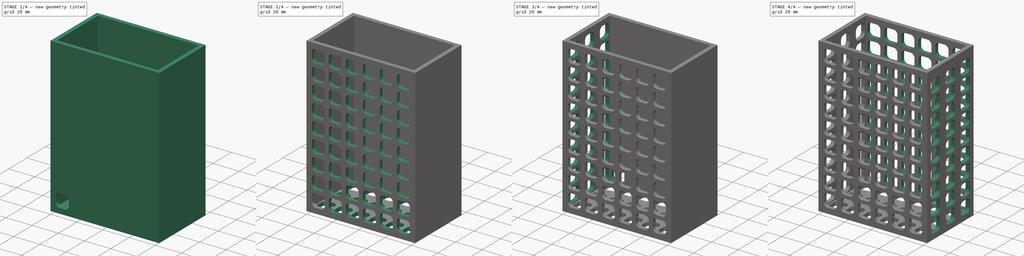
[diagram: build sequence overview — one tinted view per stage of 4, left to right]
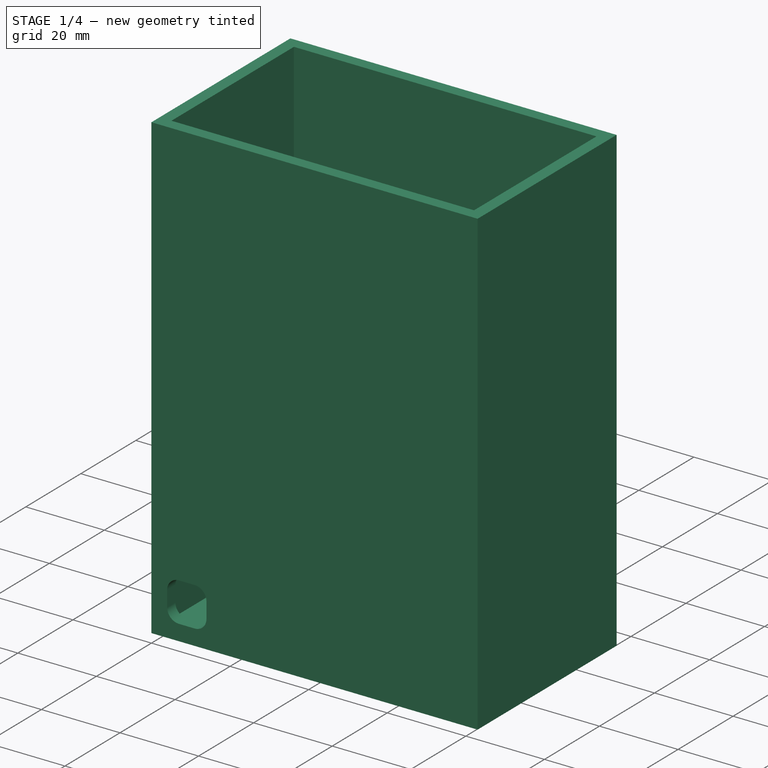
[diagram: stage 1 of 4 — iso view after this stage's code; geometry added in this stage tinted green]
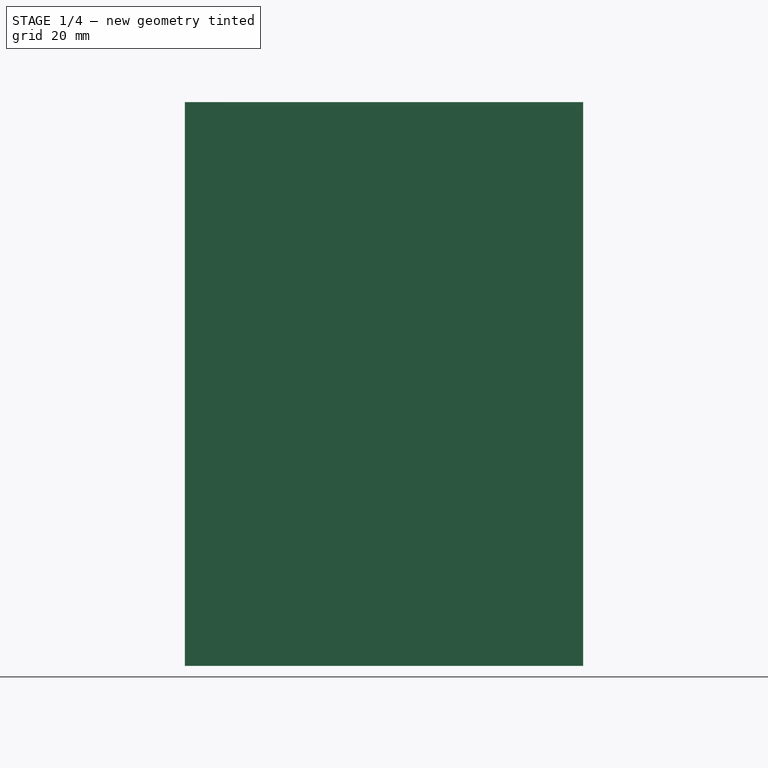
[diagram: stage 1 of 4 — front view after this stage's code; geometry added in this stage tinted green]
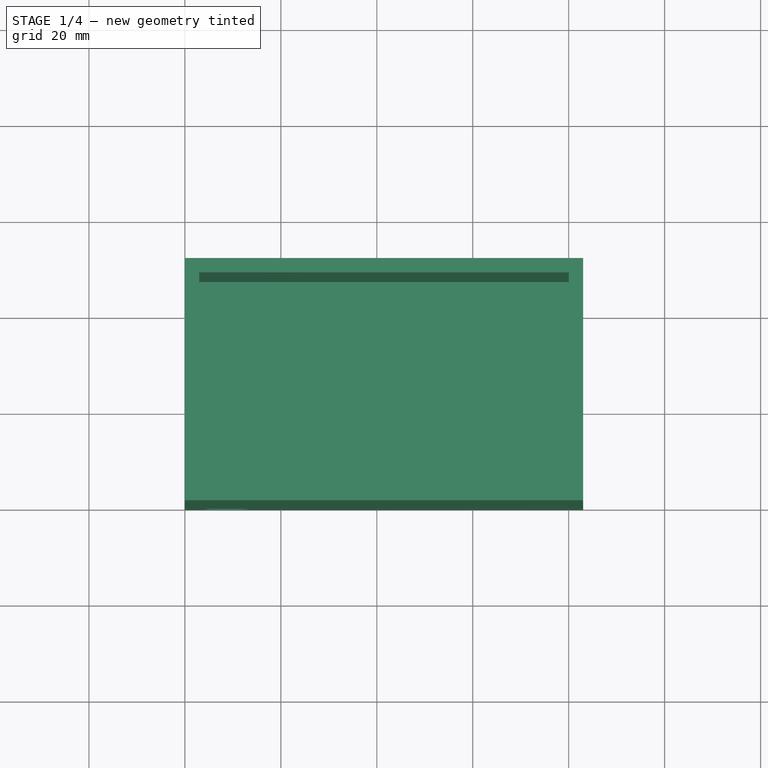
[diagram: stage 1 of 4 — top view after this stage's code; geometry added in this stage tinted green]
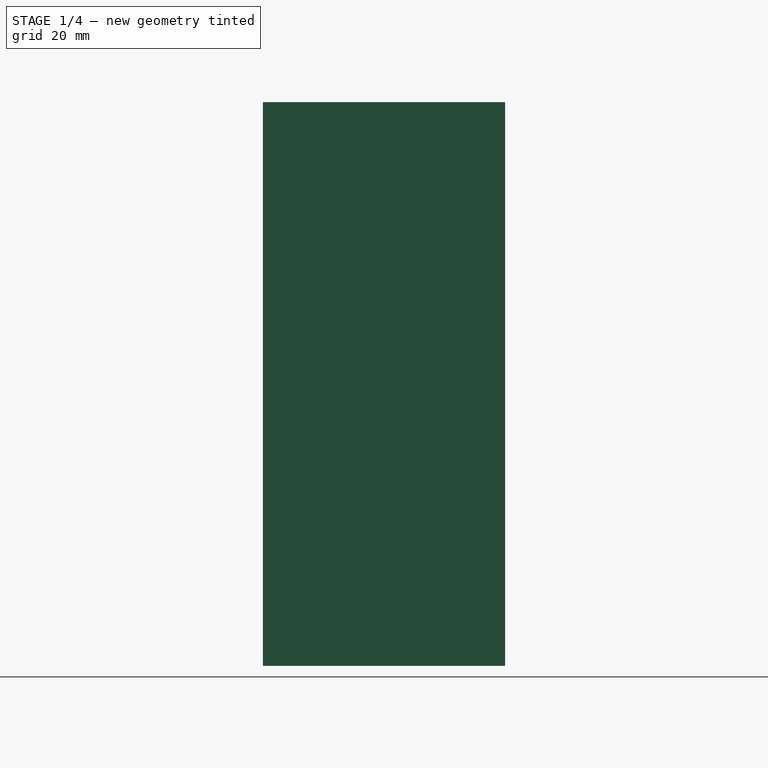
[diagram: stage 1 of 4 — right view after this stage's code; geometry added in this stage tinted green]
FCSTD DOCUMENT  (FreeCAD 0.19R24276 (Git))
Label: cestoLavaLouca
License: All rights reserved
LicenseURL: http://en.wikipedia.org/wiki/All_rights_reserved
objects: PartDesign::LinearPattern×10, Sketcher::SketchObject×7, PartDesign::Pocket×6, PartDesign::MultiTransform×5, PartDesign::Pad×1, PartDesign::Body×1
note: 37 computed .brp shape members not serialized (recipe doc carries the construction recipe); baked Part::Feature solids carry a one-line shape summary decoded from their .brp

FEATURE [Sketcher::SketchObject] Sketch
  FullyConstrained = true
  MapMode = 5
  Support = -> [XY_Plane]
  sketch-geometry (4):
    g0: LineSegment StartX=0 StartY=0 StartZ=0 EndX=83 EndY=0 EndZ=0
    g1: LineSegment StartX=83 StartY=0 StartZ=0 EndX=83 EndY=50.5 EndZ=0
    g2: LineSegment StartX=83 StartY=50.5 StartZ=0 EndX=0 EndY=50.5 EndZ=0
    g3: LineSegment StartX=0 StartY=50.5 StartZ=0 EndX=0 EndY=0 EndZ=0
  constraints (11):
    c: Coincident(g0,g1)
    c: Coincident(g1,g2)
    c: Coincident(g2,g3)
    c: Coincident(g3,g0)
    c: Horizontal(g0)
    c: Horizontal(g2)
    c: Vertical(g1)
    c: Vertical(g3)
    c: Coincident(g0,g-1)
    c: DistanceX(g2,g2) = 83
    c: DistanceY(g3,g3) = 50.5
FEATURE [PartDesign::Pad] Pad
  Direction = (1,1,1)
  Length = 117.5
  Length2 = 100
  Profile = -> Sketch
  Type = 0
FEATURE [Sketcher::SketchObject] Sketch001
  FullyConstrained = true
  MapMode = 5
  Placement = pos=(0,0,117.5) rot=(0,0,1;0rad)
  Support = -> [Pad]
  sketch-geometry (4):
    g0: LineSegment StartX=3 StartY=47.5 StartZ=0 EndX=80 EndY=47.5 EndZ=0
    g1: LineSegment StartX=80 StartY=47.5 StartZ=0 EndX=80 EndY=3 EndZ=0
    g2: LineSegment StartX=80 StartY=3 StartZ=0 EndX=3 EndY=3 EndZ=0
    g3: LineSegment StartX=3 StartY=3 StartZ=0 EndX=3 EndY=47.5 EndZ=0
  constraints (12):
    c: Coincident(g0,g1)
    c: Coincident(g1,g2)
    c: Coincident(g2,g3)
    c: Coincident(g3,g0)
    c: Horizontal(g0)
    c: Horizontal(g2)
    c: Vertical(g1)
    c: Vertical(g3)
    c: DistanceX(g2) = 3
    c: DistanceY(g2) = 3
    c: DistanceY(g3,g3) = 44.5
    c: DistanceX(g0,g0) = 77
FEATURE [PartDesign::Pocket] Pocket
  BaseFeature = -> Pad
  Length = 114.5
  Length2 = 100
  Profile = -> Sketch001
  Type = 0
  expr: Length = 117.5 - 3
FEATURE [Sketcher::SketchObject] Sketch002
  FullyConstrained = true
  MapMode = 5
  Placement = pos=(0,0,0) rot=(1,0,0;1.5708rad)
  Support = -> [Pocket]
  sketch-geometry (8):
    g0: LineSegment StartX=7 StartY=14 StartZ=0 EndX=11 EndY=14 EndZ=0
    g1: LineSegment StartX=14 StartY=11 StartZ=0 EndX=14 EndY=7 EndZ=0
    g2: LineSegment StartX=11 StartY=4 StartZ=0 EndX=7 EndY=4 EndZ=0
    g3: LineSegment StartX=4 StartY=7 StartZ=0 EndX=4 EndY=11 EndZ=0
    g4: ArcOfCircle CenterX=11 CenterY=11 CenterZ=0 NormalX=0 NormalY=0 NormalZ=1 AngleXU=0 Radius=3 StartAngle=0 EndAngle=1.5708
    g5: ArcOfCircle CenterX=11 CenterY=7 CenterZ=0 NormalX=0 NormalY=0 NormalZ=1 AngleXU=0 Radius=3 StartAngle=4.71239 EndAngle=6.28319
    g6: ArcOfCircle CenterX=7 CenterY=7 CenterZ=0 NormalX=0 NormalY=0 NormalZ=1 AngleXU=0 Radius=3 StartAngle=3.14159 EndAngle=4.71239
    g7: ArcOfCircle CenterX=7 CenterY=11 CenterZ=0 NormalX=0 NormalY=0 NormalZ=1 AngleXU=0 Radius=3 StartAngle=1.5708 EndAngle=3.14159
  constraints (20):
    c: Horizontal(g0)
    c: Horizontal(g2)
    c: Vertical(g1)
    c: Vertical(g3)
    c: Tangent(g0,g4) = 1.5708
    c: Tangent(g1,g4) = 1.5708
    c: Tangent(g2,g5) = 1.5708
    c: Tangent(g1,g5) = 1.5708
    c: Tangent(g2,g6) = 1.5708
    c: Tangent(g3,g6) = 1.5708
    c: Tangent(g3,g7) = 1.5708
    c: Tangent(g0,g7) = 1.5708
    c: Radius(g7) = 3
    c: Equal(g7,g4)
    c: Equal(g4,g5)
    c: Equal(g5,g6)
    c: Distance(g2,g-1) = 4
    c: Distance(g3,g-2) = 4
    c: Distance(g1,g3) = 10
    c: Distance(g0,g2) = 10
FEATURE [PartDesign::Pocket] Pocket001
  BaseFeature = -> Pocket
  Length = 3
  Length2 = 100
  Profile = -> Sketch002
  Type = 0
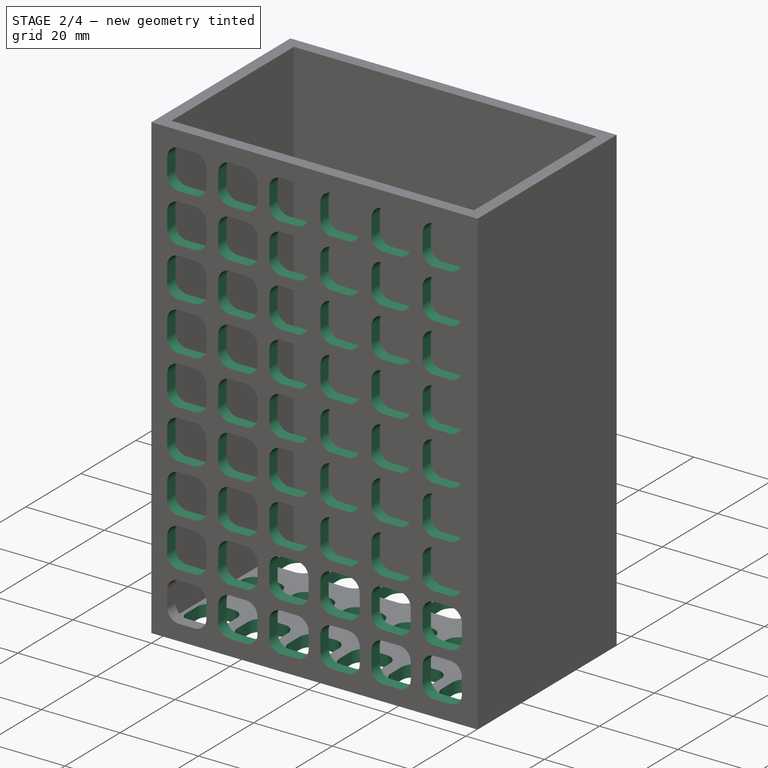
[diagram: stage 2 of 4 — iso view after this stage's code; geometry added in this stage tinted green]
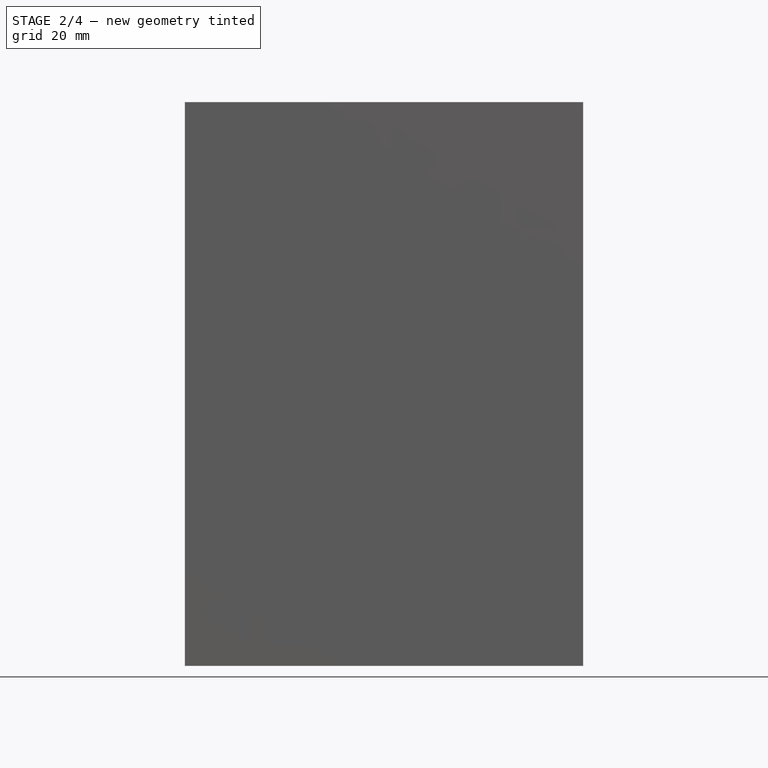
[diagram: stage 2 of 4 — front view after this stage's code; geometry added in this stage tinted green]
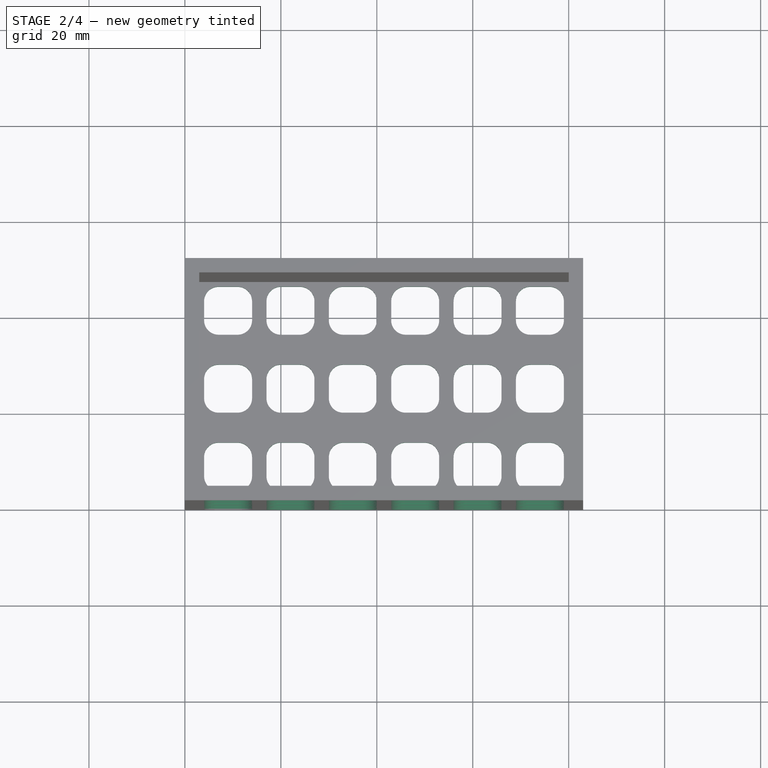
[diagram: stage 2 of 4 — top view after this stage's code; geometry added in this stage tinted green]
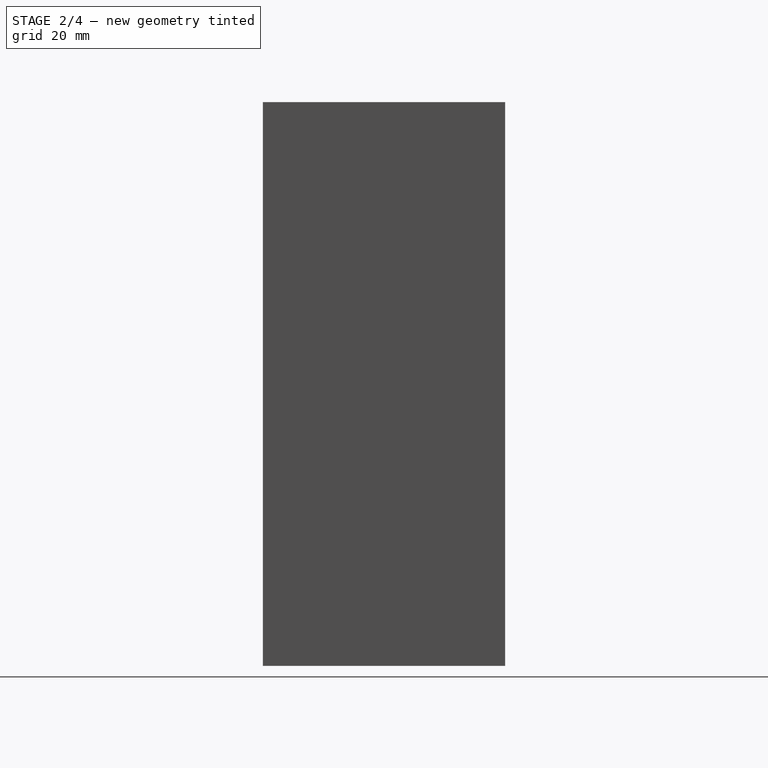
[diagram: stage 2 of 4 — right view after this stage's code; geometry added in this stage tinted green]
FEATURE [PartDesign::LinearPattern] LinearPattern
  Direction = -> Sketch002 [H_Axis]
  Length = 65
  Occurrences = 6
  expr: Length = 83 - 4 - 10 - 4
FEATURE [PartDesign::LinearPattern] LinearPattern001
  Direction = -> Sketch002 [V_Axis]
  Length = 99.5
  Occurrences = 9
  expr: Length = 117.5 - 4 - 10 - 4
FEATURE [PartDesign::MultiTransform] MultiTransform
  BaseFeature = -> Pocket001
  Originals = -> [Pocket001]
  Transformations = -> [LinearPattern,LinearPattern001]
FEATURE [Sketcher::SketchObject] Sketch003
  FullyConstrained = true
  MapMode = 5
  Placement = pos=(0,0,0) rot=(1,0,0;3.14159rad)
  Support = -> [MultiTransform]
  sketch-geometry (8):
    g0: LineSegment StartX=7 StartY=-4 StartZ=0 EndX=11 EndY=-4 EndZ=0
    g1: LineSegment StartX=14 StartY=-7 StartZ=0 EndX=14 EndY=-11 EndZ=0
    g2: LineSegment StartX=11 StartY=-14 StartZ=0 EndX=7 EndY=-14 EndZ=0
    g3: LineSegment StartX=4 StartY=-11 StartZ=0 EndX=4 EndY=-7 EndZ=0
    g4: ArcOfCircle CenterX=7 CenterY=-7 CenterZ=0 NormalX=0 NormalY=0 NormalZ=1 AngleXU=0 Radius=3 StartAngle=1.5708 EndAngle=3.14159
    g5: ArcOfCircle CenterX=11 CenterY=-7 CenterZ=0 NormalX=0 NormalY=0 NormalZ=1 AngleXU=0 Radius=3 StartAngle=0 EndAngle=1.5708
    g6: ArcOfCircle CenterX=11 CenterY=-11 CenterZ=0 NormalX=0 NormalY=0 NormalZ=1 AngleXU=0 Radius=3 StartAngle=4.71239 EndAngle=6.28319
    g7: ArcOfCircle CenterX=7 CenterY=-11 CenterZ=0 NormalX=0 NormalY=0 NormalZ=1 AngleXU=0 Radius=3 StartAngle=3.14159 EndAngle=4.71239
  constraints (20):
    c: Horizontal(g0)
    c: Horizontal(g2)
    c: Vertical(g1)
    c: Vertical(g3)
    c: Tangent(g3,g4) = 1.5708
    c: Tangent(g0,g4) = 1.5708
    c: Tangent(g0,g5) = 1.5708
    c: Tangent(g1,g5) = 1.5708
    c: Tangent(g1,g6) = 1.5708
    c: Tangent(g2,g6) = 1.5708
    c: Tangent(g2,g7) = 1.5708
    c: Tangent(g3,g7) = 1.5708
    c: Radius(g4) = 3
    c: Equal(g4,g5)
    c: Equal(g5,g7)
    c: Equal(g7,g6)
    c: DistanceY(g2,g0) = 10
    c: DistanceX(g3,g1) = 10
    c: DistanceY(g0,g-1) = 4
    c: DistanceX(g-1,g3) = 4
FEATURE [PartDesign::Pocket] Pocket002
  BaseFeature = -> MultiTransform
  Length = 3
  Length2 = 100
  Profile = -> Sketch003
  Type = 0
FEATURE [PartDesign::LinearPattern] LinearPattern003
  Direction = -> Sketch003 [H_Axis]
  Length = 65
  Occurrences = 6
  expr: Length = 83 - 4 - 4 - 10
FEATURE [PartDesign::LinearPattern] LinearPattern004
  Direction = -> Sketch003 [V_Axis]
  Length = 32.5
  Occurrences = 3
  Reversed = true
  expr: Length = 50.5 - 4 - 10 - 4
FEATURE [PartDesign::MultiTransform] MultiTransform001
  BaseFeature = -> Pocket002
  Originals = -> [Pocket002]
  Transformations = -> [LinearPattern003,LinearPattern004]
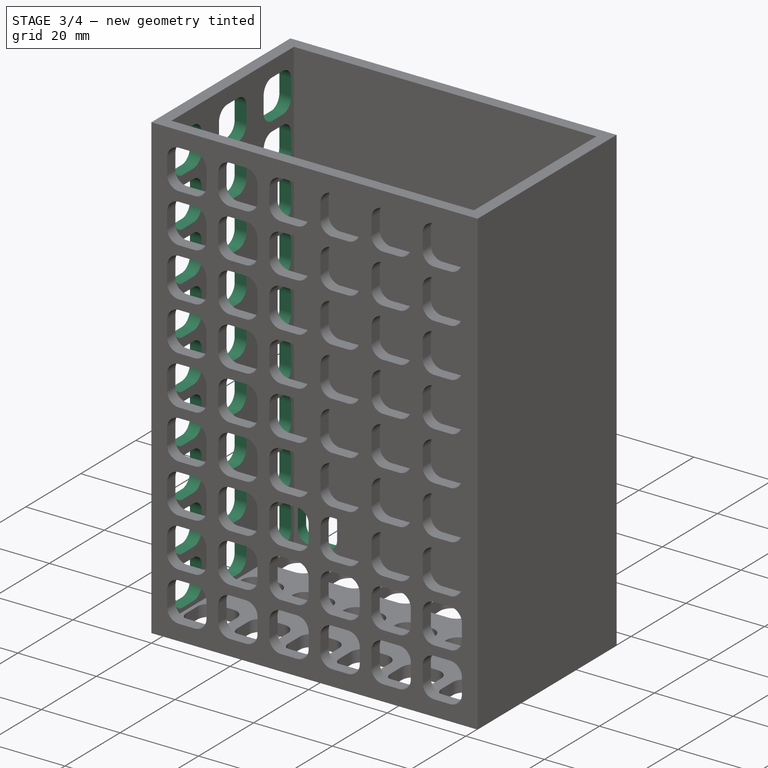
[diagram: stage 3 of 4 — iso view after this stage's code; geometry added in this stage tinted green]
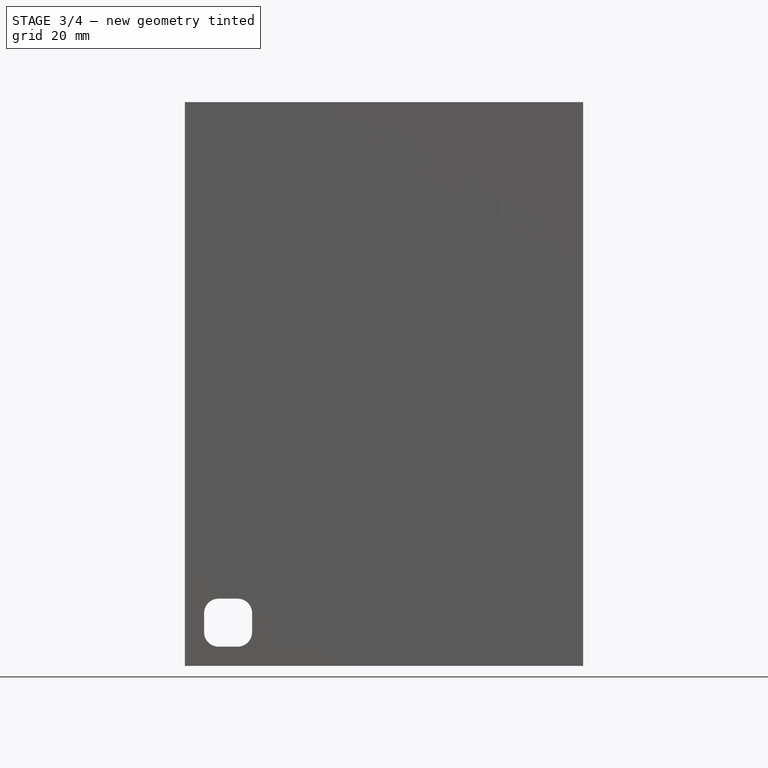
[diagram: stage 3 of 4 — front view after this stage's code; geometry added in this stage tinted green]
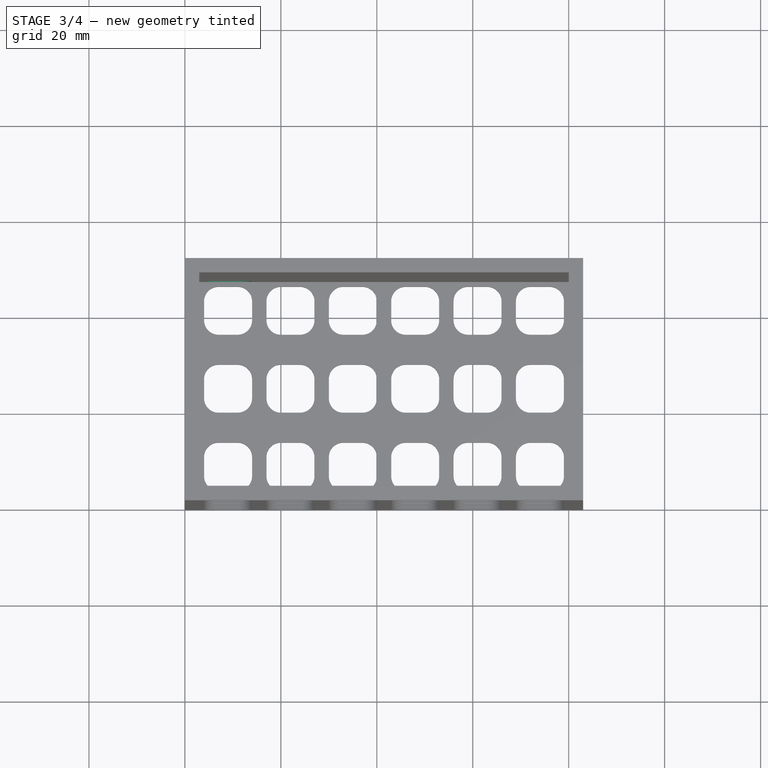
[diagram: stage 3 of 4 — top view after this stage's code; geometry added in this stage tinted green]
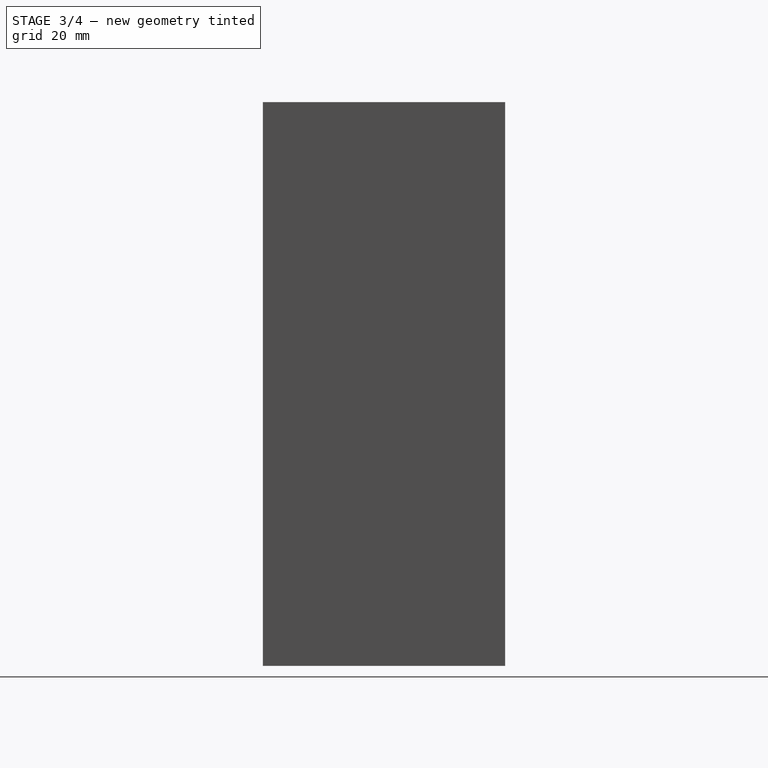
[diagram: stage 3 of 4 — right view after this stage's code; geometry added in this stage tinted green]
FEATURE [Sketcher::SketchObject] Sketch004
  FullyConstrained = true
  MapMode = 5
  Placement = pos=(0,0,0) rot=(0.57735,-0.57735,-0.57735;2.0944rad)
  Support = -> [MultiTransform001]
  sketch-geometry (8):
    g0: LineSegment StartX=-11 StartY=14 StartZ=0 EndX=-7 EndY=14 EndZ=0
    g1: LineSegment StartX=-4 StartY=11 StartZ=0 EndX=-4 EndY=7 EndZ=0
    g2: LineSegment StartX=-7 StartY=4 StartZ=0 EndX=-11 EndY=4 EndZ=0
    g3: LineSegment StartX=-14 StartY=7 StartZ=0 EndX=-14 EndY=11 EndZ=0
    g4: ArcOfCircle CenterX=-11 CenterY=11 CenterZ=0 NormalX=0 NormalY=0 NormalZ=1 AngleXU=0 Radius=3 StartAngle=1.5708 EndAngle=3.14159
    g5: ArcOfCircle CenterX=-7 CenterY=11 CenterZ=0 NormalX=0 NormalY=0 NormalZ=1 AngleXU=0 Radius=3 StartAngle=0 EndAngle=1.5708
    g6: ArcOfCircle CenterX=-11 CenterY=7 CenterZ=0 NormalX=0 NormalY=0 NormalZ=1 AngleXU=0 Radius=3 StartAngle=3.14159 EndAngle=4.71239
    g7: ArcOfCircle CenterX=-7 CenterY=7 CenterZ=0 NormalX=0 NormalY=0 NormalZ=1 AngleXU=0 Radius=3 StartAngle=4.71239 EndAngle=6.28319
  constraints (20):
    c: Horizontal(g0)
    c: Horizontal(g2)
    c: Vertical(g1)
    c: Vertical(g3)
    c: Tangent(g3,g4) = 1.5708
    c: Tangent(g0,g4) = 1.5708
    c: Tangent(g0,g5) = 1.5708
    c: Tangent(g1,g5) = 1.5708
    c: Tangent(g3,g6) = 1.5708
    c: Tangent(g2,g6) = 1.5708
    c: Tangent(g2,g7) = 1.5708
    c: Tangent(g1,g7) = 1.5708
    c: Radius(g5) = 3
    c: Equal(g5,g7)
    c: Equal(g7,g6)
    c: Equal(g6,g4)
    c: DistanceY(g2,g0) = 10
    c: DistanceX(g3,g1) = 10
    c: DistanceY(g-1,g2) = 4
    c: DistanceX(g1,g-1) = 4
FEATURE [PartDesign::Pocket] Pocket003
  BaseFeature = -> MultiTransform001
  Length = 3
  Length2 = 100
  Profile = -> Sketch004
  Type = 0
FEATURE [PartDesign::LinearPattern] LinearPattern005
  Direction = -> Sketch004 [H_Axis]
  Length = 32.5
  Occurrences = 3
  Reversed = true
  expr: Length = 50.5 - 4 - 10 - 4
FEATURE [PartDesign::LinearPattern] LinearPattern006
  Direction = -> Sketch004 [V_Axis]
  Length = 99.5
  Occurrences = 9
  expr: Length = 117.5 - 4 - 10 - 4
FEATURE [PartDesign::MultiTransform] MultiTransform002
  BaseFeature = -> Pocket003
  Originals = -> [Pocket003]
  Transformations = -> [LinearPattern005,LinearPattern006]
FEATURE [Sketcher::SketchObject] Sketch005
  FullyConstrained = true
  Placement = pos=(0,50.5,0) rot=(0,0.707107,0.707107;3.14159rad)
  Support = -> [MultiTransform002]
  sketch-geometry (8):
    g0: LineSegment StartX=-11 StartY=14 StartZ=0 EndX=-7 EndY=14 EndZ=0
    g1: LineSegment StartX=-4 StartY=11 StartZ=0 EndX=-4 EndY=7 EndZ=0
    g2: LineSegment StartX=-7 StartY=4 StartZ=0 EndX=-11 EndY=4 EndZ=0
    g3: LineSegment StartX=-14 StartY=7 StartZ=0 EndX=-14 EndY=11 EndZ=0
    g4: ArcOfCircle CenterX=-11 CenterY=11 CenterZ=0 NormalX=0 NormalY=0 NormalZ=1 AngleXU=0 Radius=3 StartAngle=1.5708 EndAngle=3.14159
    g5: ArcOfCircle CenterX=-7 CenterY=11 CenterZ=0 NormalX=0 NormalY=0 NormalZ=1 AngleXU=0 Radius=3 StartAngle=0 EndAngle=1.5708
    g6: ArcOfCircle CenterX=-7 CenterY=7 CenterZ=0 NormalX=0 NormalY=0 NormalZ=1 AngleXU=0 Radius=3 StartAngle=4.71239 EndAngle=6.28319
    g7: ArcOfCircle CenterX=-11 CenterY=7 CenterZ=0 NormalX=0 NormalY=0 NormalZ=1 AngleXU=0 Radius=3 StartAngle=3.14159 EndAngle=4.71239
  constraints (20):
    c: Horizontal(g0)
    c: Horizontal(g2)
    c: Vertical(g1)
    c: Vertical(g3)
    c: Tangent(g3,g4) = 1.5708
    c: Tangent(g0,g4) = 1.5708
    c: Tangent(g0,g5) = 1.5708
    c: Tangent(g1,g5) = 1.5708
    c: Tangent(g1,g6) = 1.5708
    c: Tangent(g2,g6) = 1.5708
    c: Tangent(g2,g7) = 1.5708
    c: Tangent(g3,g7) = 1.5708
    c: Radius(g5) = 3
    c: Equal(g5,g6)
    c: Equal(g6,g7)
    c: Equal(g7,g4)
    c: DistanceX(g3,g1) = 10
    c: DistanceY(g2,g0) = 10
    c: DistanceY(g-1,g2) = 4
    c: DistanceX(g1,g-1) = 4
FEATURE [PartDesign::Pocket] Pocket004
  BaseFeature = -> MultiTransform002
  Length = 3
  Length2 = 100
  Profile = -> Sketch005
  Type = 0
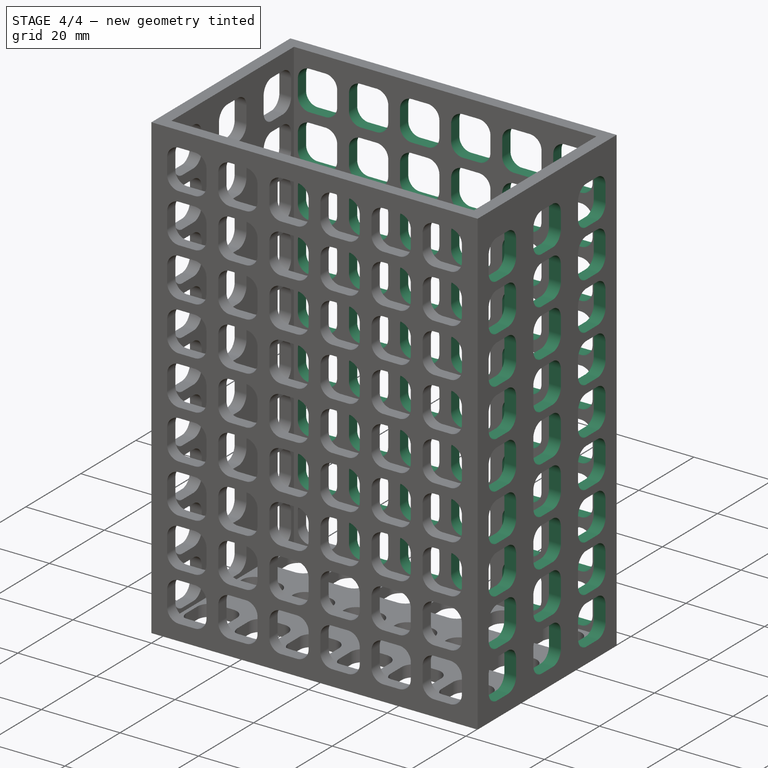
[diagram: stage 4 of 4 — iso view after this stage's code; geometry added in this stage tinted green]
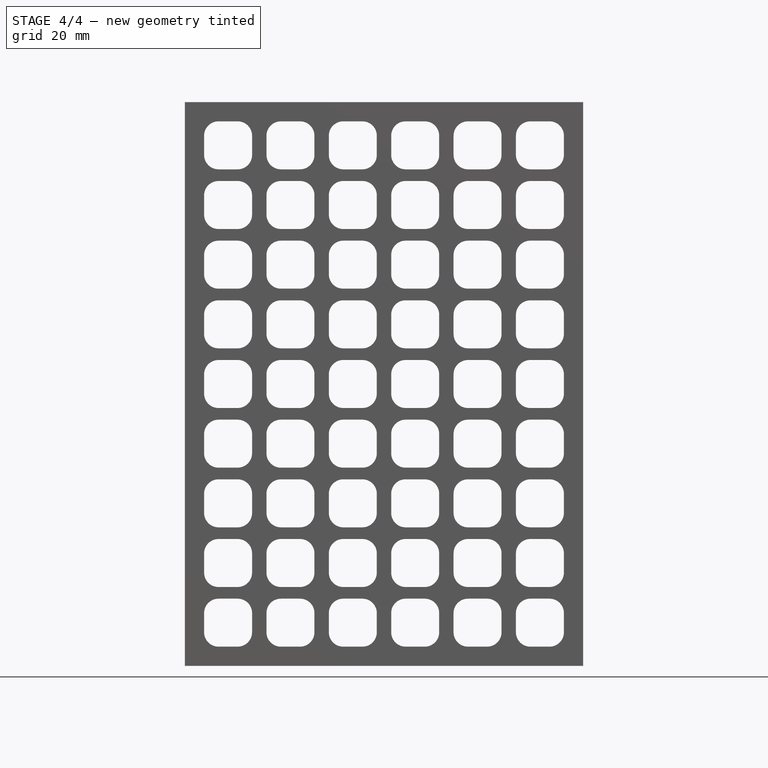
[diagram: stage 4 of 4 — front view after this stage's code; geometry added in this stage tinted green]
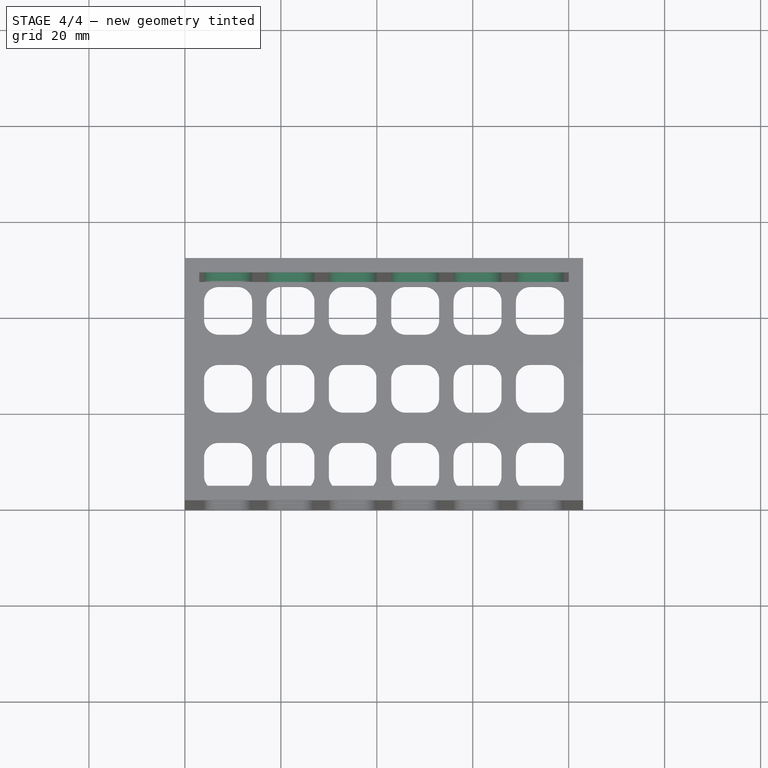
[diagram: stage 4 of 4 — top view after this stage's code; geometry added in this stage tinted green]
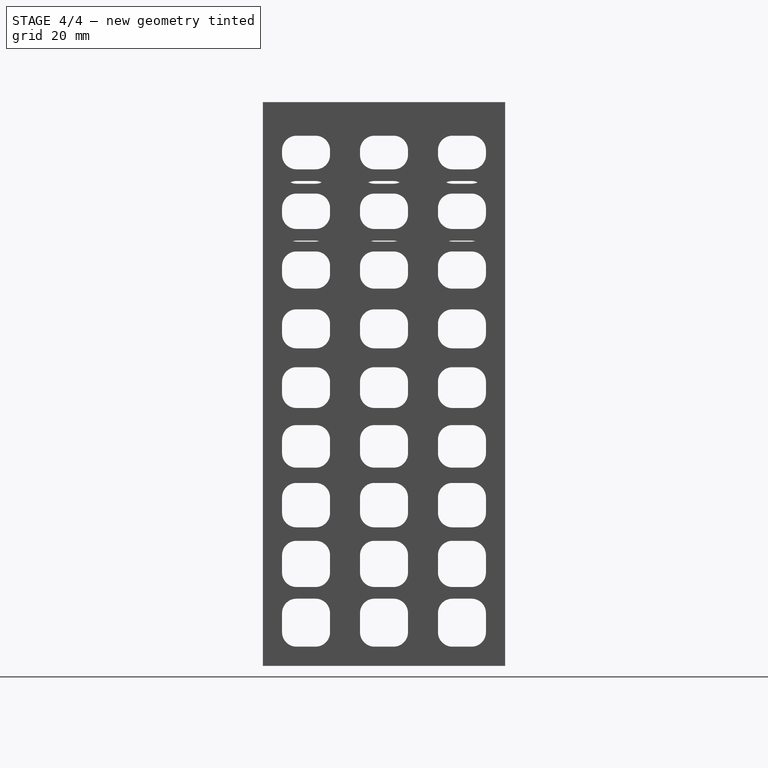
[diagram: stage 4 of 4 — right view after this stage's code; geometry added in this stage tinted green]
FEATURE [PartDesign::LinearPattern] LinearPattern007
  Direction = -> Sketch005 [H_Axis]
  Length = 65
  Occurrences = 6
  Reversed = true
  expr: Length = 83 - 4 - 10 - 4
FEATURE [PartDesign::LinearPattern] LinearPattern008
  Direction = -> Sketch005 [V_Axis]
  Length = 99.5
  Occurrences = 9
  expr: Length = 117.5 - 4 - 10 - 4
FEATURE [PartDesign::MultiTransform] MultiTransform003
  BaseFeature = -> Pocket004
  Originals = -> [Pocket004]
  Transformations = -> [LinearPattern007,LinearPattern008]
FEATURE [Sketcher::SketchObject] Sketch006
  FullyConstrained = true
  MapMode = 5
  Placement = pos=(83,0,0) rot=(0.57735,0.57735,0.57735;2.0944rad)
  Support = -> [MultiTransform003]
  sketch-geometry (8):
    g0: LineSegment StartX=7 StartY=14 StartZ=0 EndX=11 EndY=14 EndZ=0
    g1: LineSegment StartX=14 StartY=11 StartZ=0 EndX=14 EndY=7 EndZ=0
    g2: LineSegment StartX=11 StartY=4 StartZ=0 EndX=7 EndY=4 EndZ=0
    g3: LineSegment StartX=4 StartY=7 StartZ=0 EndX=4 EndY=11 EndZ=0
    g4: ArcOfCircle CenterX=7 CenterY=11 CenterZ=0 NormalX=0 NormalY=0 NormalZ=1 AngleXU=0 Radius=3 StartAngle=1.5708 EndAngle=3.14159
    g5: ArcOfCircle CenterX=11 CenterY=11 CenterZ=0 NormalX=0 NormalY=0 NormalZ=1 AngleXU=0 Radius=3 StartAngle=0 EndAngle=1.5708
    g6: ArcOfCircle CenterX=11 CenterY=7 CenterZ=0 NormalX=0 NormalY=0 NormalZ=1 AngleXU=0 Radius=3 StartAngle=4.71239 EndAngle=6.28319
    g7: ArcOfCircle CenterX=7 CenterY=7 CenterZ=0 NormalX=0 NormalY=0 NormalZ=1 AngleXU=0 Radius=3 StartAngle=3.14159 EndAngle=4.71239
  constraints (20):
    c: Horizontal(g0)
    c: Horizontal(g2)
    c: Vertical(g1)
    c: Vertical(g3)
    c: Tangent(g3,g4) = 1.5708
    c: Tangent(g0,g4) = 1.5708
    c: Tangent(g0,g5) = 1.5708
    c: Tangent(g1,g5) = 1.5708
    c: Tangent(g1,g6) = 1.5708
    c: Tangent(g2,g6) = 1.5708
    c: Tangent(g2,g7) = 1.5708
    c: Tangent(g3,g7) = 1.5708
    c: Radius(g5) = 3
    c: Equal(g5,g4)
    c: Equal(g4,g7)
    c: Equal(g7,g6)
    c: DistanceY(g2,g0) = 10
    c: DistanceX(g3,g1) = 10
    c: DistanceY(g-1,g2) = 4
    c: DistanceX(g-1,g3) = 4
FEATURE [PartDesign::Pocket] Pocket005
  BaseFeature = -> MultiTransform003
  Length = 3
  Length2 = 100
  Profile = -> Sketch006
  Type = 0
FEATURE [PartDesign::LinearPattern] LinearPattern009
  Direction = -> Sketch006 [H_Axis]
  Length = 32.5
  Occurrences = 3
  expr: Length = 50.5 - 4 - 10 - 4
FEATURE [PartDesign::LinearPattern] LinearPattern010
  Direction = -> Sketch006 [V_Axis]
  Length = 96.5
  Occurrences = 9
  expr: Length = 114.5 - 4 - 10 - 4
FEATURE [PartDesign::MultiTransform] MultiTransform004
  BaseFeature = -> Pocket005
  Originals = -> [Pocket005]
  Transformations = -> [LinearPattern009,LinearPattern010]
FEATURE [PartDesign::Body] Body
  Group = -> [Sketch,Pad,Sketch001,Pocket,Sketch002,Pocket001,MultiTransform,LinearPattern,LinearPattern001,Sketch003,Pocket002,MultiTransform001,LinearPattern003,LinearPattern004,Sketch004,Pocket003,MultiTransform002,LinearPattern005,LinearPattern006,Sketch005,Pocket004,MultiTransform003,LinearPattern007,LinearPattern008,Sketch006,Pocket005,MultiTransform004,LinearPattern009,LinearPattern010]
  Origin = -> Origin
  Tip = -> MultiTransform004
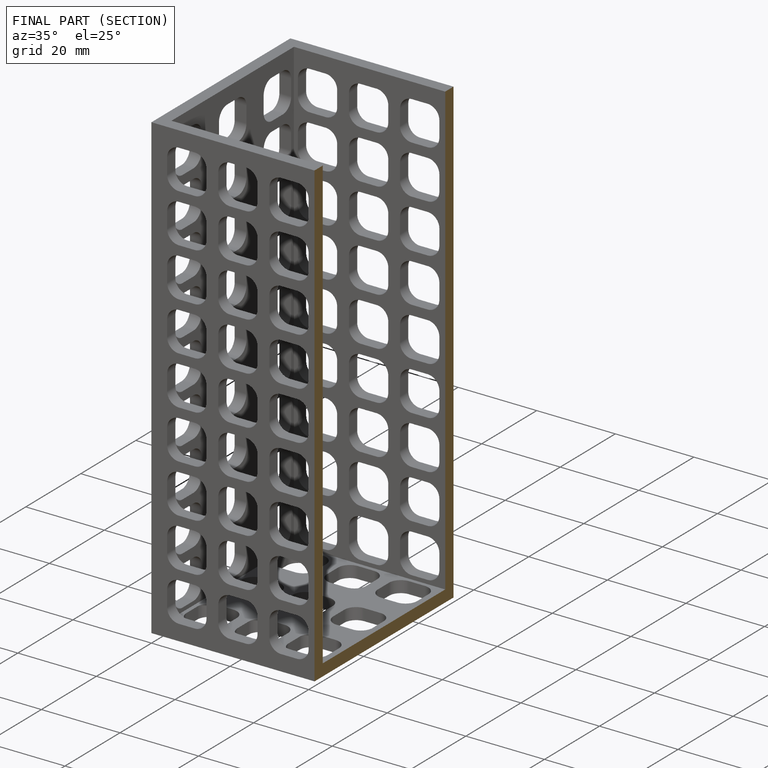
[diagram: finished part — half-section view (interior)]
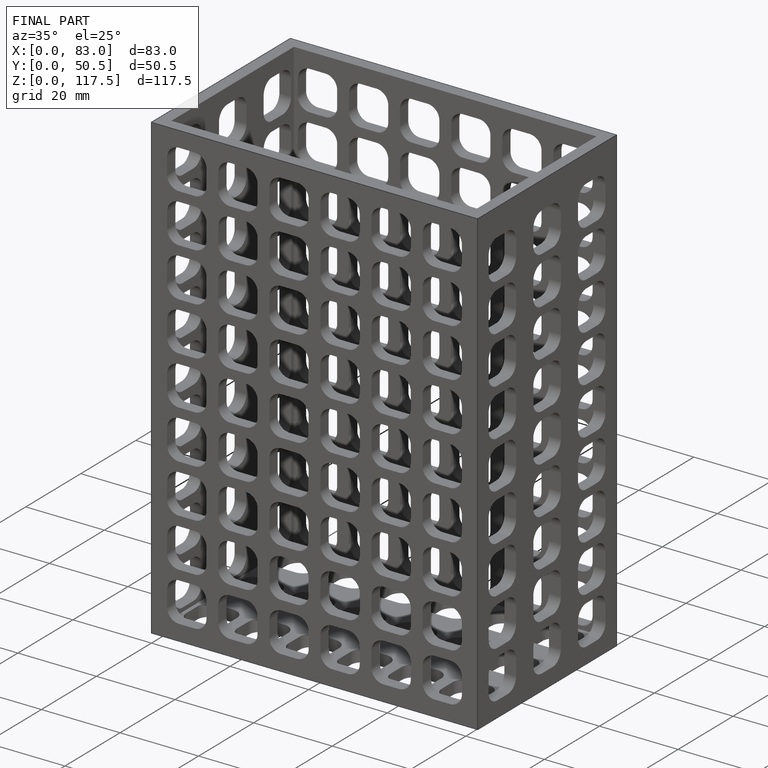
[diagram: finished part — iso view with bounding-box wireframe]
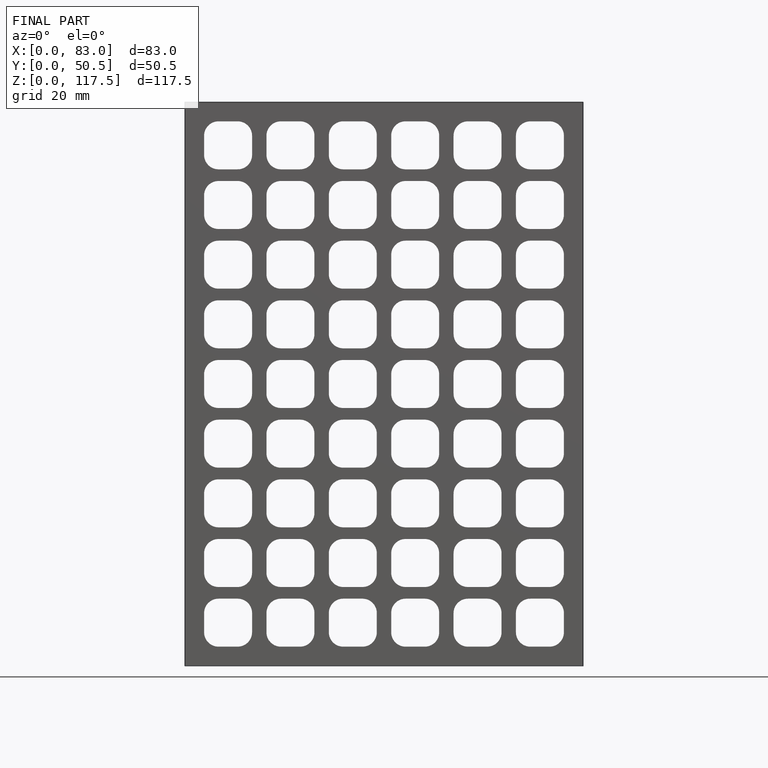
[diagram: finished part — front view with bounding-box wireframe]
